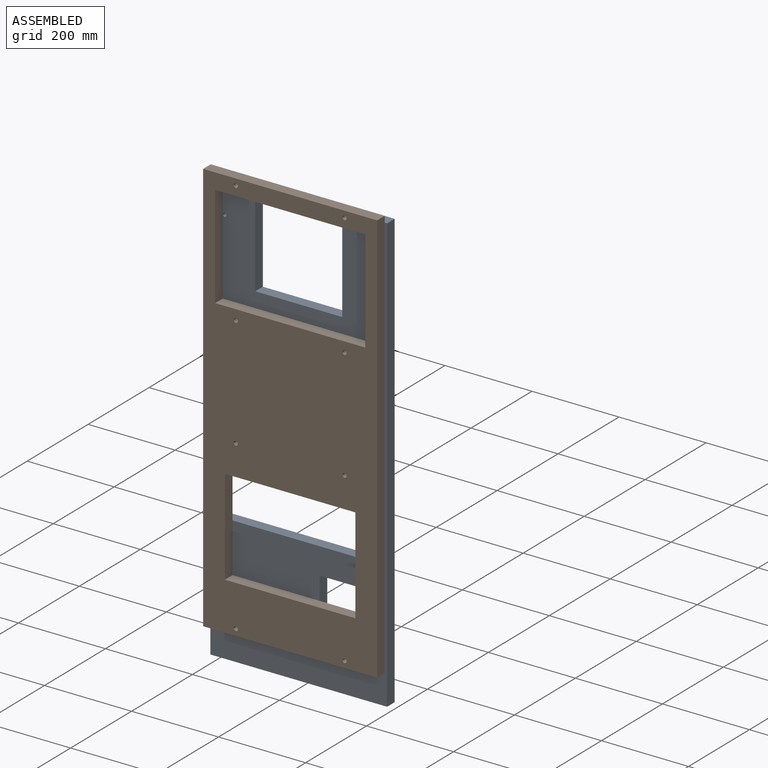
[diagram: assembled view]
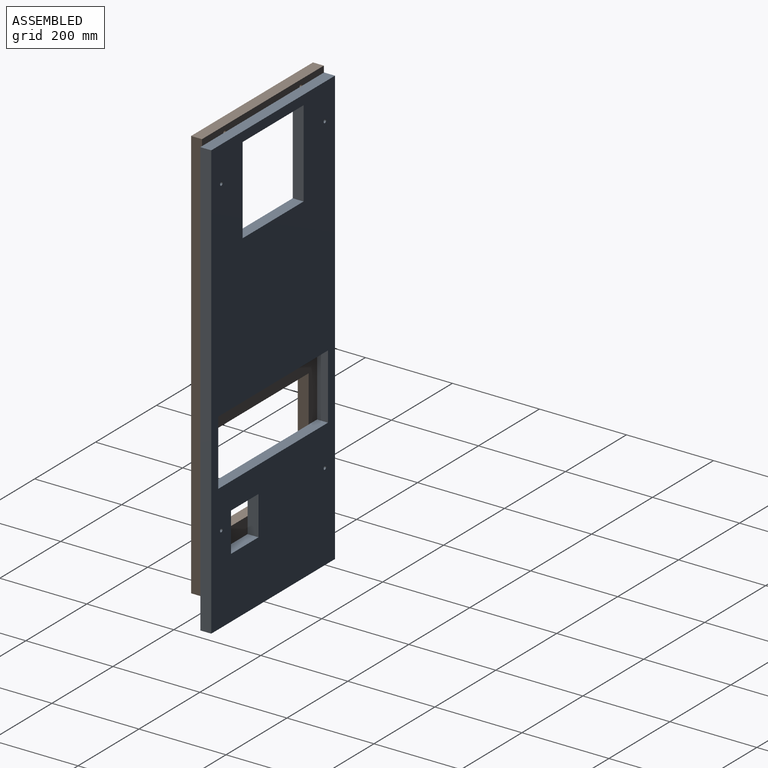
[diagram: assembled view, second angle]
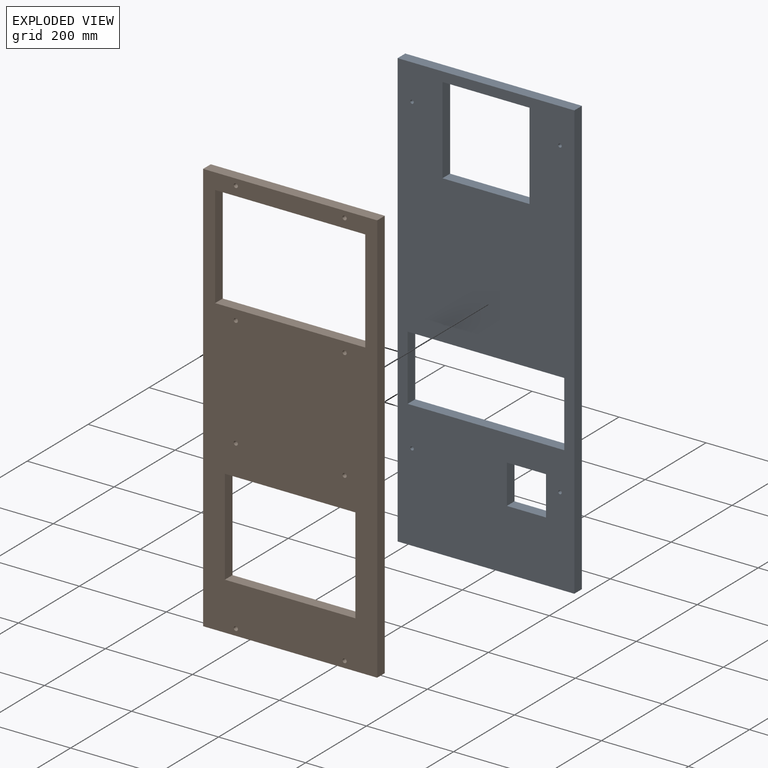
[diagram: exploded view]
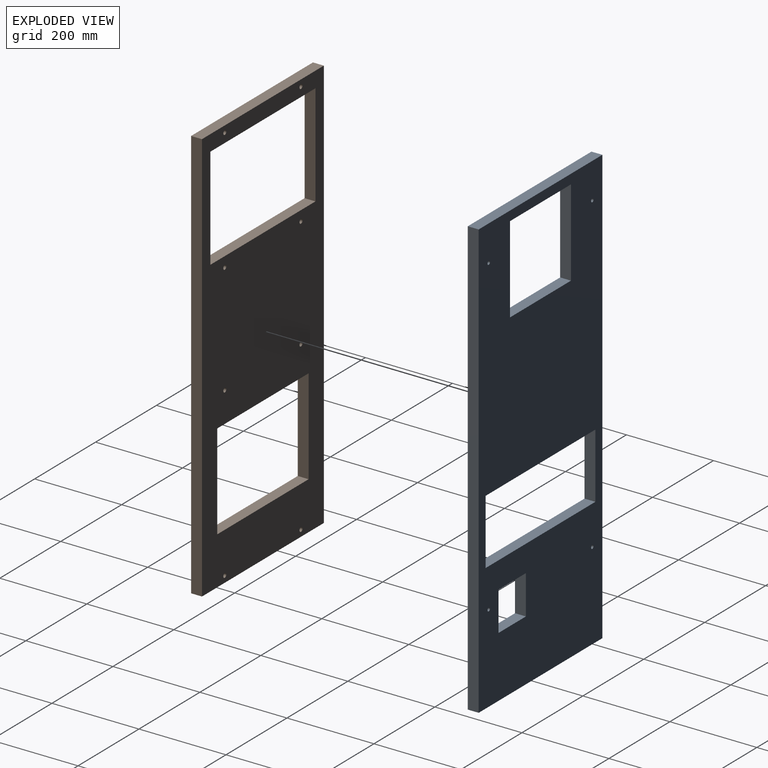
[diagram: exploded view, second angle]
ASSEMBLY  parts=2 mates=2
PART A: 22 faces, bbox 406x25x1004 mm
  f0: plane 406x25mm, normal (0,0,-1), area 10150mm2, adj f1,f19,f20,f21
  f1: plane 1004x25mm, normal (1,0,0), area 25100mm2, adj f0,f2,f20,f21
  f2: plane 406x25mm, normal (0,0,1), area 10150mm2, adj f1,f19,f20,f21
  f3: plane 200x25mm, normal (-1,0,0), area 5000mm2, adj f4,f12,f20,f21
  f4: plane 200x25mm, normal (0,0,1), area 5000mm2, adj f3,f5,f20,f21
  f5: plane 200x25mm, normal (1,0,0), area 5000mm2, adj f4,f12,f20,f21
  f6: plane 150x25mm, normal (-1,0,0), area 3750mm2, adj f7,f13,f20,f21
  f7: plane 360x25mm, normal (0,0,1), area 9000mm2, adj f6,f8,f20,f21
  f8: plane 150x25mm, normal (1,0,0), area 3750mm2, adj f7,f13,f20,f21
  f9: plane 90x25mm, normal (1,0,0), area 2250mm2, adj f10,f14,f20,f21
  f10: plane 90x25mm, normal (0,0,-1), area 2250mm2, adj f9,f11,f20,f21
  f11: plane 90x25mm, normal (-1,0,0), area 2250mm2, adj f10,f14,f20,f21
  f12: plane 200x25mm, normal (0,0,-1), area 5000mm2, adj f3,f5,f20,f21
  f13: plane 360x25mm, normal (0,0,-1), area 9000mm2, adj f6,f8,f20,f21
  f14: plane 90x25mm, normal (0,0,1), area 2250mm2, adj f9,f11,f20,f21
  f15: cylinder r=4mm len=25mm, axis (0,-1,0), area 628.3mm2, adj f20,f21
  f16: cylinder r=4mm len=25mm, axis (0,-1,0), area 628.3mm2, adj f20,f21
  f17: cylinder r=4mm len=25mm, axis (0,-1,0), area 628.3mm2, adj f20,f21
  f18: cylinder r=4mm len=25mm, axis (0,-1,0), area 628.3mm2, adj f20,f21
  f19: plane 1004x25mm, normal (-1,0,0), area 25100mm2, adj f0,f2,f20,f21
  f20: plane 1004x406mm, normal (0,1,0), area 305322.9mm2, adj f0,f1,f2,f3,f4,f5,f6,f7
  f21: plane 1004x406mm, normal (0,-1,0), area 305322.9mm2, adj f0,f1,f2,f3,f4,f5,f6,f7
PART B: 22 faces, bbox 400x25x950 mm
  f0: plane 400x25mm, normal (0,0,-1), area 10000mm2, adj f1,f19,f20,f21
  f1: plane 950x25mm, normal (1,0,0), area 23750mm2, adj f0,f2,f20,f21
  f2: plane 400x25mm, normal (0,0,1), area 10000mm2, adj f1,f19,f20,f21
  f3: plane 235x25mm, normal (-1,0,0), area 5875mm2, adj f4,f9,f20,f21
  f4: plane 345x25mm, normal (0,0,1), area 8625mm2, adj f3,f5,f20,f21
  f5: plane 235x25mm, normal (1,0,0), area 5875mm2, adj f4,f9,f20,f21
  f6: plane 220x25mm, normal (-1,0,0), area 5500mm2, adj f7,f10,f20,f21
  f7: plane 300x25mm, normal (0,0,1), area 7500mm2, adj f6,f8,f20,f21
  f8: plane 220x25mm, normal (1,0,0), area 5500mm2, adj f7,f10,f20,f21
  f9: plane 345x25mm, normal (0,0,-1), area 8625mm2, adj f3,f5,f20,f21
  f10: plane 300x25mm, normal (0,0,-1), area 7500mm2, adj f6,f8,f20,f21
  f11: cylinder r=4.75mm len=25mm, axis (0,1,0), area 746.1mm2, adj f20,f21
  f12: cylinder r=4.75mm len=25mm, axis (0,1,0), area 746.1mm2, adj f20,f21
  f13: cylinder r=4.75mm len=25mm, axis (0,1,0), area 746.1mm2, adj f20,f21
  f14: cylinder r=4.75mm len=25mm, axis (0,1,0), area 746.1mm2, adj f20,f21
  f15: cylinder r=4.75mm len=25mm, axis (0,1,0), area 746.1mm2, adj f20,f21
  f16: cylinder r=4.75mm len=25mm, axis (0,1,0), area 746.1mm2, adj f20,f21
  f17: cylinder r=4.75mm len=25mm, axis (0,1,0), area 746.1mm2, adj f20,f21
  f18: cylinder r=4.75mm len=25mm, axis (0,1,0), area 746.1mm2, adj f20,f21
  f19: plane 950x25mm, normal (-1,0,0), area 23750mm2, adj f0,f2,f20,f21
  f20: plane 950x400mm, normal (0,-1,0), area 232357.9mm2, adj f0,f1,f2,f3,f4,f5,f6,f7
  f21: plane 950x400mm, normal (0,1,0), area 232357.9mm2, adj f0,f1,f2,f3,f4,f5,f6,f7
PLACE A t=(0,63.26,-64.33)mm
PLACE B t=(-2.19,63.26,-22.83)mm
MATE planar B.f21 <-> A.f21  axis (0,1,0) through (-202.19,63.26,-22.83)mm
MATE planar B.f9 <-> A.f12  axis (0,0,-1) through (170.31,63.26,415.67)mm
